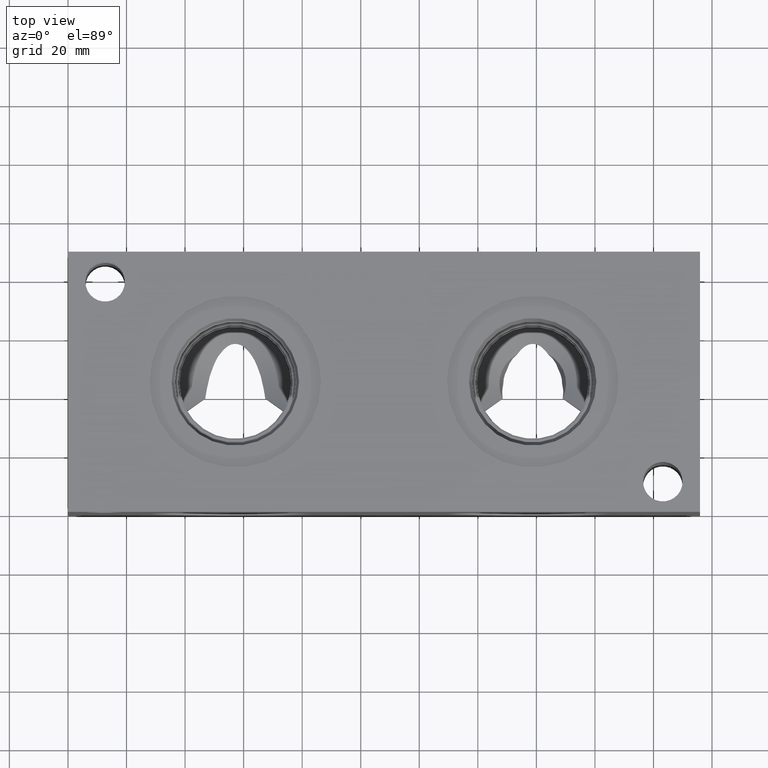
[diagram: clean part render]
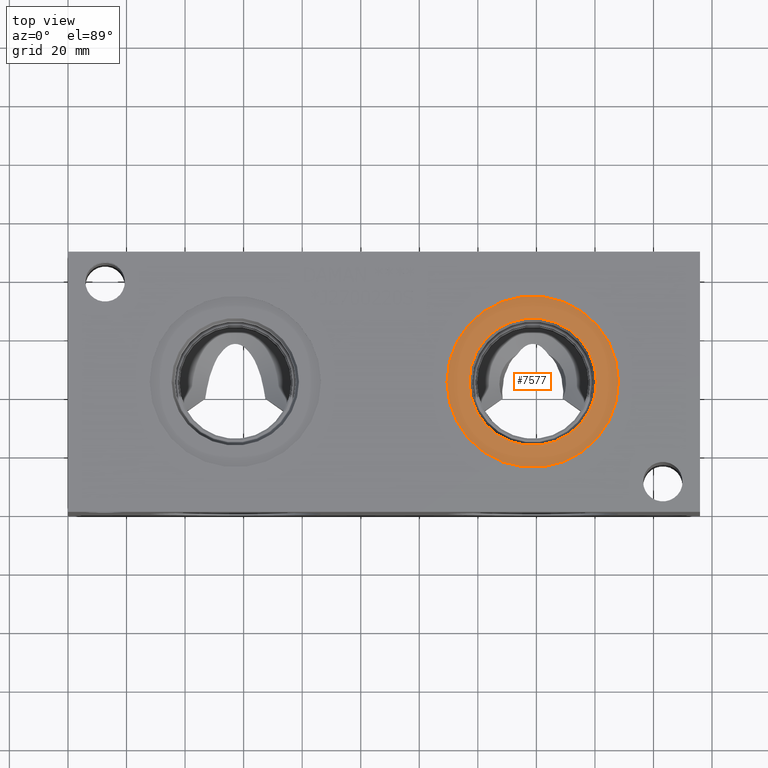
[diagram: same view with one face highlighted and labeled with its STEP entity id]
A machine part, top view. The second image highlights one B-rep face of the part: STEP entity #7577.
In plain terms, the highlighted planar face has unit normal (0, 0, 1).
Its self-contained STEP definition (entity closure, byte-faithful):
#191=CIRCLE('',#7981,29.2862);
#192=CIRCLE('',#7982,29.2862);
#193=CIRCLE('',#7983,21.7551);
#277=FACE_BOUND('',#1377,.T.);
#951=FACE_OUTER_BOUND('',#1376,.T.);
#1376=EDGE_LOOP('',(#6490,#6491));
#1377=EDGE_LOOP('',(#6492));
#3469=VERTEX_POINT('',#13037);
#3470=VERTEX_POINT('',#13038);
#3471=VERTEX_POINT('',#13041);
#4493=EDGE_CURVE('',#3469,#3470,#191,.T.);
#4494=EDGE_CURVE('',#3470,#3469,#192,.T.);
#4495=EDGE_CURVE('',#3471,#3471,#193,.T.);
#6490=ORIENTED_EDGE('',*,*,#4493,.T.);
#6491=ORIENTED_EDGE('',*,*,#4494,.T.);
#6492=ORIENTED_EDGE('',*,*,#4495,.F.);
#6922=PLANE('',#7980);
#7577=ADVANCED_FACE('',(#951,#277),#6922,.T.);
#7980=AXIS2_PLACEMENT_3D('',#13036,#9432,#9433);
#7981=AXIS2_PLACEMENT_3D('',#13039,#9434,#9435);
#7982=AXIS2_PLACEMENT_3D('',#13040,#9436,#9437);
#7983=AXIS2_PLACEMENT_3D('',#13042,#9438,#9439);
#9432=DIRECTION('center_axis',(0.,0.,1.));
#9433=DIRECTION('ref_axis',(1.,0.,0.));
#9434=DIRECTION('center_axis',(0.,0.,1.));
#9435=DIRECTION('ref_axis',(1.,0.,0.));
#9436=DIRECTION('center_axis',(0.,0.,1.));
#9437=DIRECTION('ref_axis',(1.,0.,0.));
#9438=DIRECTION('center_axis',(0.,0.,1.));
#9439=DIRECTION('ref_axis',(1.,0.,0.));
#13036=CARTESIAN_POINT('Origin',(158.75,44.45,88.1126));
#13037=CARTESIAN_POINT('',(188.0362,44.45,88.1126));
#13038=CARTESIAN_POINT('',(129.4638,44.45,88.1126));
#13039=CARTESIAN_POINT('Origin',(158.75,44.45,88.1126));
#13040=CARTESIAN_POINT('Origin',(158.75,44.45,88.1126));
#13041=CARTESIAN_POINT('',(136.9949,44.45,88.1126));
#13042=CARTESIAN_POINT('Origin',(158.75,44.45,88.1126));